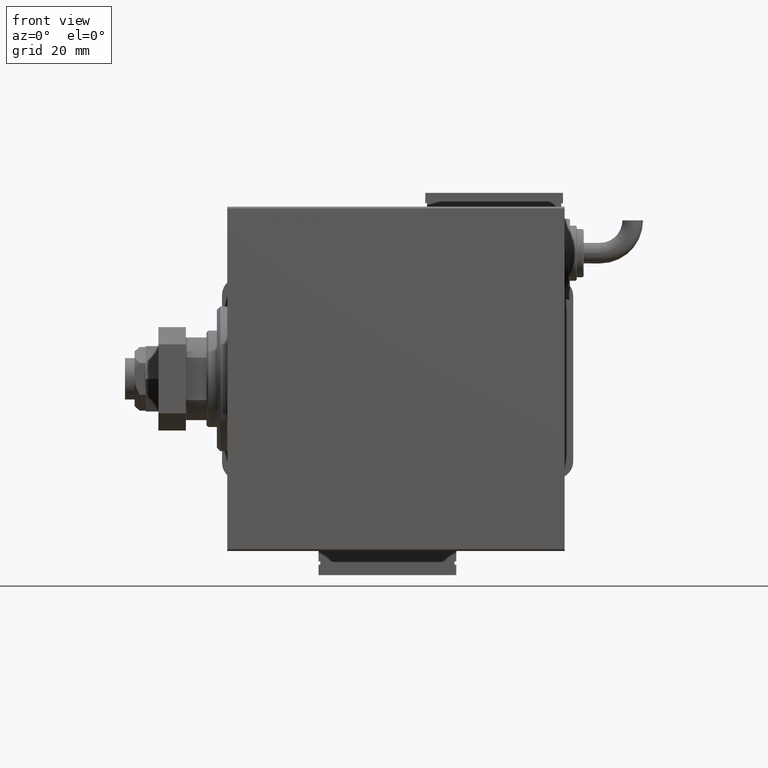
[diagram: clean part render]
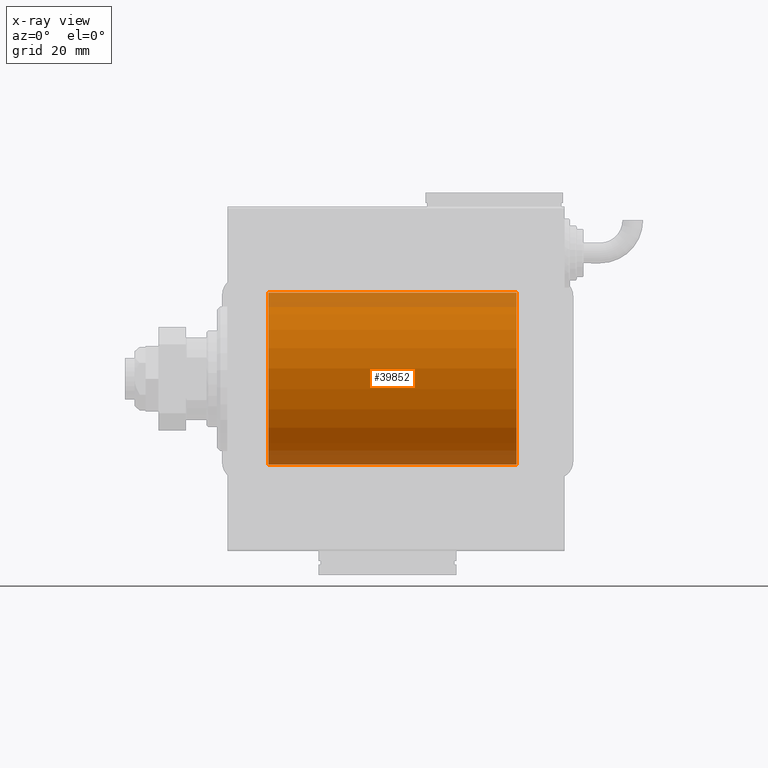
[diagram: x-ray — body ghosted, one internal face saturated and labeled with its STEP entity id]
A machine part, front view, then the same camera in x-ray: the body is ghosted and one INTERNAL B-rep face — a face not visible from any outside direction — is saturated and labeled: STEP entity #39852.
In plain terms, the highlighted cylindrical surface (partial cylindrical patch) has radius 25 mm, axis along (-1, -0, -0).
Its self-contained STEP definition (entity closure, byte-faithful):
#775 = DIRECTION ( 'NONE',  ( -1.000000000000000000, 0.000000000000000000, 0.000000000000000000 ) ) ;
#801 = CARTESIAN_POINT ( 'NONE',  ( 77.75393620905936132, -1.109818057797414381, -24.97580694515541921 ) ) ;
#1629 = EDGE_CURVE ( 'NONE', #2823, #42736, #48588, .T. ) ;
#1999 = CARTESIAN_POINT ( 'NONE',  ( 78.11814045851357946, -1.653834020452939146, -24.94550385189584318 ) ) ;
#2036 = CARTESIAN_POINT ( 'NONE',  ( 30.98749815834399257, -1.525407911884362644, -24.95379469572362652 ) ) ;
#2823 = VERTEX_POINT ( 'NONE', #52377 ) ;
#3014 = VECTOR ( 'NONE', #10649, 1000.000000000000000 ) ;
#3841 = CARTESIAN_POINT ( 'NONE',  ( 26.75393620905934000, -1.109818057797415936, -24.97580694515542987 ) ) ;
#5064 = CARTESIAN_POINT ( 'NONE',  ( 81.88412382786472676, -1.651251241585101059, -24.94567559498348430 ) ) ;
#6252 = CARTESIAN_POINT ( 'NONE',  ( 77.56650644760256341, -0.6588655613945877398, -24.99312727339970408 ) ) ;
#6291 = CARTESIAN_POINT ( 'NONE',  ( 27.11814045851354393, -1.653834020452936260, -24.94550385189585029 ) ) ;
#6998 = DIRECTION ( 'NONE',  ( -1.000000000000000000, 0.000000000000000000, 0.000000000000000000 ) ) ;
#9643 = EDGE_CURVE ( 'NONE', #39208, #2823, #36940, .T. ) ;
#9887 = VERTEX_POINT ( 'NONE', #25018 ) ;
#10104 = CYLINDRICAL_SURFACE ( 'NONE', #58064, 25.00000000000000000 ) ;
#10226 = CARTESIAN_POINT ( 'NONE',  ( 77.50000000000001421, -3.163294216715586498E-15, -25.00000000000000000 ) ) ;
#10526 = CARTESIAN_POINT ( 'NONE',  ( 79.83676410361458409, -2.500125740978189182, -24.87467329022545215 ) ) ;
#10649 = DIRECTION ( 'NONE',  ( -1.000000000000000000, -0.000000000000000000, -0.000000000000000000 ) ) ;
#11470 = CARTESIAN_POINT ( 'NONE',  ( 29.80788342405805125, -2.371528299825743424, -24.88734287464369999 ) ) ;
#11769 = CARTESIAN_POINT ( 'NONE',  ( 84.00000000000000000, 0.000000000000000000, 25.00000000000000000 ) ) ;
#11776 = CARTESIAN_POINT ( 'NONE',  ( 27.01461966282905891, -1.528152964861308138, -24.95362559291378801 ) ) ;
#13085 = ORIENTED_EDGE ( 'NONE', *, *, #24715, .T. ) ;
#13878 = CARTESIAN_POINT ( 'NONE',  ( 77.50000000000001421, -3.163294216715586498E-15, -25.00000000000000000 ) ) ;
#14150 = ORIENTED_EDGE ( 'NONE', *, *, #16391, .T. ) ;
#15699 = CARTESIAN_POINT ( 'NONE',  ( 79.67403429960539540, -2.484007091859756766, -24.87630842367762796 ) ) ;
#16391 = EDGE_CURVE ( 'NONE', #53461, #9887, #19718, .T. ) ;
#17607 = EDGE_CURVE ( 'NONE', #19279, #48123, #23181, .T. ) ;
#18137 = CARTESIAN_POINT ( 'NONE',  ( 26.83172358506043764, -1.255214705003178555, -24.96884293994578741 ) ) ;
#19279 = VERTEX_POINT ( 'NONE', #40936 ) ;
#19371 = CARTESIAN_POINT ( 'NONE',  ( 78.34878866440891443, -1.884161199660618013, -24.92916496727982789 ) ) ;
#19664 = CARTESIAN_POINT ( 'NONE',  ( 81.11036796508865621, -2.245863995402895164, -24.89899750494197406 ) ) ;
#19718 = B_SPLINE_CURVE_WITH_KNOTS ( 'NONE', 3,
 ( #25785, #25172, #43462, #48634, #20001, #44370, #43763, #2036, #24871, #20602, #53209, #58374, #30342, #11470, #53821, #58072, #34006, #52611, #25483, #44068, #29439, #20901, #34920, #48031, #53509, #6291, #11776, #18137, #3841, #35537, #26705, #21519 ),
 .UNSPECIFIED., .F., .F.,
 ( 4, 2, 2, 2, 2, 2, 2, 2, 2, 2, 2, 2, 2, 2, 2, 4 ),
 ( 0.007821024441662303289, 0.008309723826317913162, 0.008798423210973523034, 0.009287122595629127703, 0.009775821980284732371, 0.01026452136494033877, 0.01075322074959594518, 0.01124192013425154985, 0.01173061951890715451, 0.01221931890356276092, 0.01270801828821836559, 0.01319671767287397025, 0.01368541705752957666, 0.01417411644218518132, 0.01466281582684078599, 0.01564021459615200227 ),
 .UNSPECIFIED. ) ;
#19987 = DIRECTION ( 'NONE',  ( -1.000000000000000000, -0.000000000000000000, -0.000000000000000000 ) ) ;
#20001 = CARTESIAN_POINT ( 'NONE',  ( 31.37215969408607563, -0.8058335233485421911, -24.98746277938383287 ) ) ;
#20564 = CARTESIAN_POINT ( 'NONE',  ( 80.16706495178063108, -2.499872792855076575, -24.87469871246082675 ) ) ;
#20602 = CARTESIAN_POINT ( 'NONE',  ( 30.65383336149338689, -1.881857718844712757, -24.92933960374833902 ) ) ;
#20901 = CARTESIAN_POINT ( 'NONE',  ( 27.89276154161589716, -2.247417070759893498, -24.89885693081946272 ) ) ;
#21158 = CARTESIAN_POINT ( 'NONE',  ( 84.00000000000000000, 3.061616997868382254E-15, -25.00000000000000000 ) ) ;
#21519 = CARTESIAN_POINT ( 'NONE',  ( 26.50000000000000355, -3.314090237927254693E-15, -25.00000000000000000 ) ) ;
#22331 = DIRECTION ( 'NONE',  ( -1.000000000000000000, -0.000000000000000000, -0.000000000000000000 ) ) ;
#22925 = CARTESIAN_POINT ( 'NONE',  ( 84.00000000000000000, 3.061616997868382254E-15, -25.00000000000000000 ) ) ;
#23048 = CARTESIAN_POINT ( 'NONE',  ( 82.17011290280929359, -1.252049606094341572, -24.96900299967627745 ) ) ;
#23181 = CIRCLE ( 'NONE', #47488, 25.00000000000000000 ) ;
#23535 = AXIS2_PLACEMENT_3D ( 'NONE', #34111, #6998, #44169 ) ;
#23653 = CARTESIAN_POINT ( 'NONE',  ( 81.65383336149341176, -1.881857718844715421, -24.92933960374833546 ) ) ;
#23785 = ORIENTED_EDGE ( 'NONE', *, *, #36397, .F. ) ;
#23923 = DIRECTION ( 'NONE',  ( 0.000000000000000000, 0.000000000000000000, 1.000000000000000000 ) ) ;
#24715 = EDGE_CURVE ( 'NONE', #42736, #53461, #32593, .T. ) ;
#24721 = ORIENTED_EDGE ( 'NONE', *, *, #26084, .T. ) ;
#24871 = CARTESIAN_POINT ( 'NONE',  ( 30.88412382786470900, -1.651251241585097951, -24.94567559498349141 ) ) ;
#25018 = CARTESIAN_POINT ( 'NONE',  ( 26.50000000000000355, -3.314090237927254693E-15, -25.00000000000000000 ) ) ;
#25172 = CARTESIAN_POINT ( 'NONE',  ( 31.49999999999999289, -0.1631750940176174836, -25.00000000000000711 ) ) ;
#25229 = CARTESIAN_POINT ( 'NONE',  ( 84.00000000000000000, 0.000000000000000000, 0.000000000000000000 ) ) ;
#25483 = CARTESIAN_POINT ( 'NONE',  ( 28.67403429960539540, -2.484007091859760319, -24.87630842367762440 ) ) ;
#25785 = CARTESIAN_POINT ( 'NONE',  ( 31.50000000000000000, 3.061616978460191625E-15, -25.00000000000000000 ) ) ;
#26084 = EDGE_CURVE ( 'NONE', #9887, #19279, #38536, .T. ) ;
#26705 = CARTESIAN_POINT ( 'NONE',  ( 26.50000000000001066, -0.3305063766663772773, -25.00000000000000711 ) ) ;
#26843 = ORIENTED_EDGE ( 'NONE', *, *, #55195, .F. ) ;
#27874 = VECTOR ( 'NONE', #22331, 1000.000000000000000 ) ;
#28218 = CARTESIAN_POINT ( 'NONE',  ( 82.50000000000000000, -0.1631750940176171505, -25.00000000000000355 ) ) ;
#29101 = CARTESIAN_POINT ( 'NONE',  ( 80.32947680114270383, -2.483544361357264751, -24.87635491893501438 ) ) ;
#29398 = CARTESIAN_POINT ( 'NONE',  ( 78.47743225659816346, -1.989585286700248590, -24.92087098724766747 ) ) ;
#29424 = CARTESIAN_POINT ( 'NONE',  ( 84.00000000000000000, 0.000000000000000000, 25.00000000000000000 ) ) ;
#29439 = CARTESIAN_POINT ( 'NONE',  ( 28.19564339083698457, -2.372734907014170780, -24.88722742718433878 ) ) ;
#29997 = CARTESIAN_POINT ( 'NONE',  ( 79.35439333851368815, -2.420689345803750836, -24.88254961038873958 ) ) ;
#30342 = CARTESIAN_POINT ( 'NONE',  ( 30.11036796508863844, -2.245863995402896496, -24.89899750494197406 ) ) ;
#31876 = CARTESIAN_POINT ( 'NONE',  ( 82.42014909220930008, -0.6480119923854186226, -24.99212088949390775 ) ) ;
#32593 = LINE ( 'NONE', #38085, #3014 ) ;
#33601 = CARTESIAN_POINT ( 'NONE',  ( 11.99999999999999645, 0.000000000000000000, 25.00000000000000000 ) ) ;
#33614 = VECTOR ( 'NONE', #19987, 1000.000000000000000 ) ;
#33657 = DIRECTION ( 'NONE',  ( -1.000000000000000000, -0.000000000000000000, -0.000000000000000000 ) ) ;
#34006 = CARTESIAN_POINT ( 'NONE',  ( 29.16706495178061331, -2.499872792855078352, -24.87469871246083031 ) ) ;
#34111 = CARTESIAN_POINT ( 'NONE',  ( 84.00000000000000000, 0.000000000000000000, 0.000000000000000000 ) ) ;
#34270 = CARTESIAN_POINT ( 'NONE',  ( 77.83172358506043054, -1.255214705003180109, -24.96884293994577675 ) ) ;
#34572 = CARTESIAN_POINT ( 'NONE',  ( 78.89276154161592558, -2.247417070759896607, -24.89885693081946272 ) ) ;
#34920 = CARTESIAN_POINT ( 'NONE',  ( 27.74915976075945068, -2.170728182476715951, -24.90574631553724672 ) ) ;
#35537 = CARTESIAN_POINT ( 'NONE',  ( 26.56650644760253499, -0.6588655613945881839, -24.99312727339971119 ) ) ;
#36397 = EDGE_CURVE ( 'NONE', #37304, #48123, #52001, .T. ) ;
#36940 = LINE ( 'NONE', #22925, #27874 ) ;
#37304 = VERTEX_POINT ( 'NONE', #11769 ) ;
#38085 = CARTESIAN_POINT ( 'NONE',  ( 84.00000000000000000, 3.061616997868382254E-15, -25.00000000000000000 ) ) ;
#38536 = LINE ( 'NONE', #21158, #53622 ) ;
#39208 = VERTEX_POINT ( 'NONE', #59330 ) ;
#39852 = ADVANCED_FACE ( 'NONE', ( #56410 ), #10104, .F. ) ;
#40510 = ORIENTED_EDGE ( 'NONE', *, *, #9643, .T. ) ;
#40936 = CARTESIAN_POINT ( 'NONE',  ( 11.99999999999999645, 3.061616997868382254E-15, -25.00000000000000000 ) ) ;
#41339 = CARTESIAN_POINT ( 'NONE',  ( 82.50000000000001421, 3.061616978466502512E-15, -25.00000000000000000 ) ) ;
#41635 = CARTESIAN_POINT ( 'NONE',  ( 81.52536182243082408, -1.987446652080251619, -24.92104239223420592 ) ) ;
#42232 = CARTESIAN_POINT ( 'NONE',  ( 81.25383195424505800, -2.169003991399860443, -24.90589728951139037 ) ) ;
#42736 = VERTEX_POINT ( 'NONE', #13878 ) ;
#43462 = CARTESIAN_POINT ( 'NONE',  ( 31.48417840057656036, -0.3254210271412191213, -24.99840249400844172 ) ) ;
#43763 = CARTESIAN_POINT ( 'NONE',  ( 31.17011290280923674, -1.252049606094335132, -24.96900299967627035 ) ) ;
#44068 = CARTESIAN_POINT ( 'NONE',  ( 28.35439333851369526, -2.420689345803757053, -24.88254961038873958 ) ) ;
#44169 = DIRECTION ( 'NONE',  ( 0.000000000000000000, 0.000000000000000000, 1.000000000000000000 ) ) ;
#44370 = CARTESIAN_POINT ( 'NONE',  ( 31.24760251019550950, -1.106703319666878960, -24.97594585958023217 ) ) ;
#44695 = ORIENTED_EDGE ( 'NONE', *, *, #17607, .T. ) ;
#46502 = CARTESIAN_POINT ( 'NONE',  ( 82.37215969408609340, -0.8058335233485441895, -24.98746277938383287 ) ) ;
#46777 = CARTESIAN_POINT ( 'NONE',  ( 11.99999999999999645, 0.000000000000000000, 0.000000000000000000 ) ) ;
#46804 = CARTESIAN_POINT ( 'NONE',  ( 81.98749815834398191, -1.525407911884367529, -24.95379469572361586 ) ) ;
#47268 = DIRECTION ( 'NONE',  ( 0.000000000000000000, 0.000000000000000000, 1.000000000000000000 ) ) ;
#47394 = CARTESIAN_POINT ( 'NONE',  ( 80.64904390169097326, -2.419770561643902695, -24.88263927071750814 ) ) ;
#47488 = AXIS2_PLACEMENT_3D ( 'NONE', #46777, #775, #23923 ) ;
#47993 = CARTESIAN_POINT ( 'NONE',  ( 78.01461966282909088, -1.528152964861308138, -24.95362559291378091 ) ) ;
#48031 = CARTESIAN_POINT ( 'NONE',  ( 27.47743225659811017, -1.989585286700241928, -24.92087098724766037 ) ) ;
#48123 = VERTEX_POINT ( 'NONE', #33601 ) ;
#48588 = B_SPLINE_CURVE_WITH_KNOTS ( 'NONE', 3,
 ( #41339, #28218, #55050, #31876, #46502, #59913, #23048, #46804, #5064, #23653, #41635, #42232, #19664, #52272, #47394, #29101, #20564, #10526, #15699, #29997, #48594, #34572, #57729, #29398, #19371, #1999, #47993, #34270, #801, #6252, #52866, #10226 ),
 .UNSPECIFIED., .F., .F.,
 ( 4, 2, 2, 2, 2, 2, 2, 2, 2, 2, 2, 2, 2, 2, 2, 4 ),
 ( 0.007821024441662298085, 0.008309723826317902753, 0.008798423210973509156, 0.009287122595629113825, 0.009775821980284718493, 0.01026452136494032490, 0.01075322074959592956, 0.01124192013425153597, 0.01173061951890714064, 0.01221931890356274530, 0.01270801828821835171, 0.01319671767287395811, 0.01368541705752956104, 0.01417411644218516745, 0.01466281582684077212, 0.01564021459615199880 ),
 .UNSPECIFIED. ) ;
#48594 = CARTESIAN_POINT ( 'NONE',  ( 79.19564339083697746, -2.372734907014171224, -24.88722742718433523 ) ) ;
#48634 = CARTESIAN_POINT ( 'NONE',  ( 31.42014909220929653, -0.6480119923854192887, -24.99212088949391131 ) ) ;
#50952 = ORIENTED_EDGE ( 'NONE', *, *, #1629, .T. ) ;
#52001 = LINE ( 'NONE', #29424, #33614 ) ;
#52272 = CARTESIAN_POINT ( 'NONE',  ( 80.80788342405803348, -2.371528299825742092, -24.88734287464371064 ) ) ;
#52377 = CARTESIAN_POINT ( 'NONE',  ( 82.50000000000001421, 3.061616978466502512E-15, -25.00000000000000000 ) ) ;
#52599 = CARTESIAN_POINT ( 'NONE',  ( 31.50000000000000000, 3.061616978460191625E-15, -25.00000000000000000 ) ) ;
#52611 = CARTESIAN_POINT ( 'NONE',  ( 28.83676410361456632, -2.500125740978190958, -24.87467329022545215 ) ) ;
#52866 = CARTESIAN_POINT ( 'NONE',  ( 77.50000000000001421, -0.3305063766663793867, -25.00000000000000711 ) ) ;
#53209 = CARTESIAN_POINT ( 'NONE',  ( 30.52536182243080276, -1.987446652080258724, -24.92104239223419881 ) ) ;
#53461 = VERTEX_POINT ( 'NONE', #52599 ) ;
#53509 = CARTESIAN_POINT ( 'NONE',  ( 27.34878866440887535, -1.884161199660613351, -24.92916496727982079 ) ) ;
#53622 = VECTOR ( 'NONE', #33657, 1000.000000000000000 ) ;
#53821 = CARTESIAN_POINT ( 'NONE',  ( 29.64904390169096615, -2.419770561643904472, -24.88263927071750459 ) ) ;
#55050 = CARTESIAN_POINT ( 'NONE',  ( 82.48417840057659589, -0.3254210271412191768, -24.99840249400844883 ) ) ;
#55195 = EDGE_CURVE ( 'NONE', #39208, #37304, #56574, .T. ) ;
#56410 = FACE_OUTER_BOUND ( 'NONE', #60148, .T. ) ;
#56574 = CIRCLE ( 'NONE', #23535, 25.00000000000000000 ) ;
#57520 = DIRECTION ( 'NONE',  ( -1.000000000000000000, -0.000000000000000000, -0.000000000000000000 ) ) ;
#57729 = CARTESIAN_POINT ( 'NONE',  ( 78.74915976075949686, -2.170728182476720391, -24.90574631553725027 ) ) ;
#58064 = AXIS2_PLACEMENT_3D ( 'NONE', #25229, #57520, #47268 ) ;
#58072 = CARTESIAN_POINT ( 'NONE',  ( 29.32947680114269318, -2.483544361357266972, -24.87635491893501793 ) ) ;
#58374 = CARTESIAN_POINT ( 'NONE',  ( 30.25383195424503668, -2.169003991399866660, -24.90589728951138682 ) ) ;
#59330 = CARTESIAN_POINT ( 'NONE',  ( 84.00000000000000000, 3.061616997868382254E-15, -25.00000000000000000 ) ) ;
#59913 = CARTESIAN_POINT ( 'NONE',  ( 82.24760251019554858, -1.106703319666881180, -24.97594585958024282 ) ) ;
#60148 = EDGE_LOOP ( 'NONE', ( #26843, #40510, #50952, #13085, #14150, #24721, #44695, #23785 ) ) ;